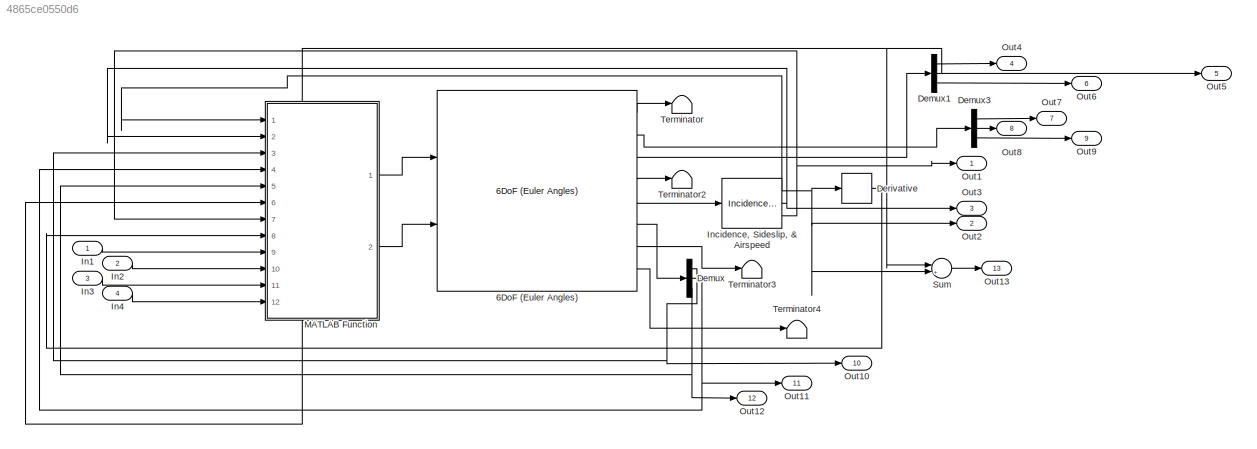
MODEL slx_4865ce0550d6
KIND model
BLOCK [Reference] 6DoF (Euler Angles)  REF=aerolib6dof2/6DoF (Euler Angles)
  Ports = [2, 8]
  SourceBlock = aerolib6dof2/6DoF (Euler Angles)
  SourceType = 6DoF EoM (Body Axis)
  Vm_0 = [u v w]
  eul_0 = [0 0 0]
  inertia = diag([I_xx I_yy I_zz])
  inertia_e = eye(3)
  inertia_f = 2*eye(3)
  k_quat = 1.0
  mass_0 = m
  mass_e = 0.5
  mass_f = 2.0
  mtype = Fixed
  pm_0 = [0 0 0]
  rep = Euler Angles
  units = Metric (MKS)
  xme_0 = [0 0 0]
BLOCK [Demux] Demux
  DisplayOption = bar
  Outputs = 3
  Ports = [1, 3]
BLOCK [Demux] Demux1
  DisplayOption = bar
  Outputs = 3
  Ports = [1, 3]
BLOCK [Demux] Demux3
  DisplayOption = bar
  Outputs = 3
  Ports = [1, 3]
BLOCK [Derivative] Derivative
BLOCK [Inport] In1
  IconDisplay = Port number
BLOCK [Inport] In2
  IconDisplay = Port number
  Port = 2
BLOCK [Inport] In3
  IconDisplay = Port number
  Port = 3
BLOCK [Inport] In4
  IconDisplay = Port number
  Port = 4
BLOCK [Reference] Incidence, Sideslip, & Airspeed  REF=aerolibasang/Incidence, Sideslip,
& Airspeed
  Ports = [1, 3]
  SourceBlock = aerolibasang/Incidence, Sideslip,\n& Airspeed
  SourceType = Incidence,Sideslip,&Airspeed
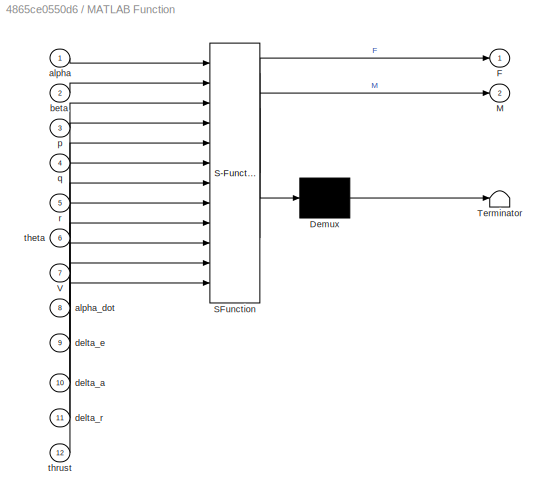
BLOCK [SubSystem] MATLAB Function
  ErrorFcn = Stateflow.Translate.translate
  FunctionWithSeparateData = off
  MaskHideContents = off
  MinAlgLoopOccurrences = off
  Opaque = off
  PermitHierarchicalResolution = ExplicitOnly
  Ports = [12, 2]
  PropExecContextOutsideSubsystem = off
  RTWSystemCode = Auto
  RequestExecContextInheritance = off
  SFBlockType = MATLAB Function
  TreatAsAtomicUnit = on
BLOCK [Demux] MATLAB Function/ Demux 
  Outputs = 1
  Ports = [1, 1]
BLOCK [S-Function] MATLAB Function/ SFunction 
  EnableBusSupport = on
  FunctionName = sf_sfun
  PortCounts = [12 3]
  Ports = [12, 3]
  Tag = Stateflow S-Function Cessna_6DOF_trim_ha 2
BLOCK [Terminator] MATLAB Function/ Terminator 
BLOCK [Outport] MATLAB Function/F
  IconDisplay = Port number
BLOCK [Outport] MATLAB Function/M
  IconDisplay = Port number
  Port = 2
BLOCK [Inport] MATLAB Function/V
  IconDisplay = Port number
  Port = 7
BLOCK [Inport] MATLAB Function/alpha
  IconDisplay = Port number
BLOCK [Inport] MATLAB Function/alpha_dot
  IconDisplay = Port number
  Port = 8
BLOCK [Inport] MATLAB Function/beta
  IconDisplay = Port number
  Port = 2
BLOCK [Inport] MATLAB Function/delta_a
  IconDisplay = Port number
  Port = 10
BLOCK [Inport] MATLAB Function/delta_e
  IconDisplay = Port number
  Port = 9
BLOCK [Inport] MATLAB Function/delta_r
  IconDisplay = Port number
  Port = 11
BLOCK [Inport] MATLAB Function/p
  IconDisplay = Port number
  Port = 3
BLOCK [Inport] MATLAB Function/q
  IconDisplay = Port number
  Port = 4
BLOCK [Inport] MATLAB Function/r
  IconDisplay = Port number
  Port = 5
BLOCK [Inport] MATLAB Function/theta
  IconDisplay = Port number
  Port = 6
BLOCK [Inport] MATLAB Function/thrust
  IconDisplay = Port number
  Port = 12
BLOCK [Outport] Out1
  IconDisplay = Port number
BLOCK [Outport] Out10
  IconDisplay = Port number
  Port = 10
BLOCK [Outport] Out11
  IconDisplay = Port number
  Port = 11
BLOCK [Outport] Out12
  IconDisplay = Port number
  Port = 12
BLOCK [Outport] Out13
  IconDisplay = Port number
  Port = 13
BLOCK [Outport] Out2
  IconDisplay = Port number
  Port = 2
BLOCK [Outport] Out3
  IconDisplay = Port number
  Port = 3
BLOCK [Outport] Out4
  IconDisplay = Port number
  Port = 4
BLOCK [Outport] Out5
  IconDisplay = Port number
  Port = 5
BLOCK [Outport] Out6
  IconDisplay = Port number
  Port = 6
BLOCK [Outport] Out7
  IconDisplay = Port number
  Port = 7
BLOCK [Outport] Out8
  IconDisplay = Port number
  Port = 8
BLOCK [Outport] Out9
  IconDisplay = Port number
  Port = 9
BLOCK [Sum] Sum
  IconShape = round
  InputSameDT = off
  Inputs = |+-
  OutDataTypeStr = Inherit: Inherit via internal rule
  Ports = [2, 1]
  SaturateOnIntegerOverflow = off
BLOCK [Terminator] Terminator
BLOCK [Terminator] Terminator2
BLOCK [Terminator] Terminator3
BLOCK [Terminator] Terminator4
LINE 6DoF (Euler Angles):1 -> Terminator:1
LINE 6DoF (Euler Angles):2 -> Demux3:1
LINE 6DoF (Euler Angles):3 -> Demux1:1
LINE 6DoF (Euler Angles):4 -> Terminator2:1
LINE 6DoF (Euler Angles):5 -> Incidence, Sideslip, & Airspeed:1
LINE 6DoF (Euler Angles):6 -> Demux:1
LINE 6DoF (Euler Angles):7 -> Terminator3:1
LINE 6DoF (Euler Angles):8 -> Terminator4:1
LINE Demux1:1 -> Out4:1
NET Demux1:2 -> MATLAB Function:6, Out5:1, Sum:1
LINE Demux1:3 -> Out6:1
LINE Demux3:1 -> Out7:1
LINE Demux3:2 -> Out8:1
LINE Demux3:3 -> Out9:1
NET Demux:1 -> MATLAB Function:3, Out10:1
NET Demux:2 -> MATLAB Function:4, Out11:1
NET Demux:3 -> MATLAB Function:5, Out12:1
LINE Derivative:1 -> MATLAB Function:8
LINE In1:1 -> MATLAB Function:9
LINE In2:1 -> MATLAB Function:10
LINE In3:1 -> MATLAB Function:11
LINE In4:1 -> MATLAB Function:12
NET Incidence, Sideslip, & Airspeed:1 -> Derivative:1, MATLAB Function:1, Out2:1, Sum:2
NET Incidence, Sideslip, & Airspeed:2 -> MATLAB Function:2, Out3:1
NET Incidence, Sideslip, & Airspeed:3 -> MATLAB Function:7, Out1:1
LINE MATLAB Function:1 -> 6DoF (Euler Angles):1
LINE MATLAB Function:2 -> 6DoF (Euler Angles):2
LINE Sum:1 -> Out13:1
note: NET lines group one-source signal fan-out (src -> all destinations, sorted); 1:1 wires keep LINE
